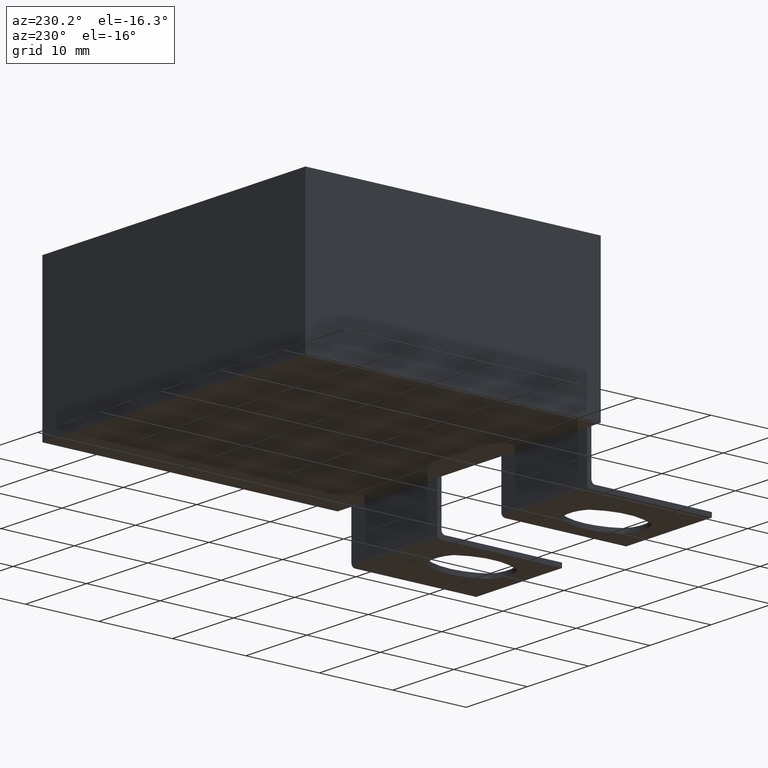
[diagram: clean part render]
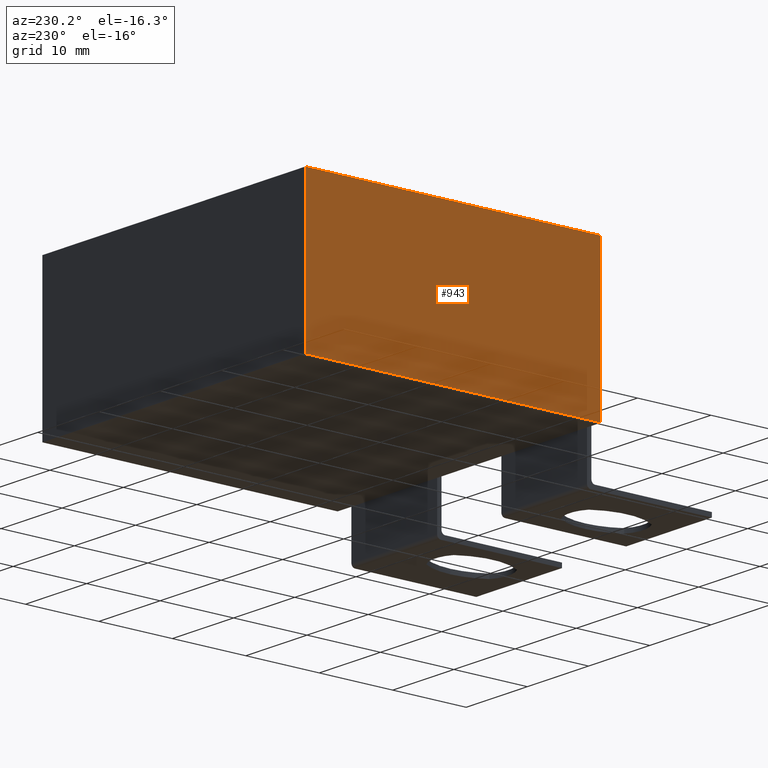
[diagram: same view with one face highlighted and labeled with its STEP entity id]
A machine part, auxiliary view. The second image highlights one B-rep face of the part: STEP entity #943.
In plain terms, the highlighted planar face has unit normal (1, 0, 0).
Its self-contained STEP definition (entity closure, byte-faithful):
#79 = EDGE_CURVE ( 'NONE', #3009, #1369, #2644, .T. ) ;
#125 = CARTESIAN_POINT ( 'NONE',  ( 0.0000000000000000000, 0.0000000000000000000, 20.39999999999999900 ) ) ;
#143 = VECTOR ( 'NONE', #2925, 1000.000000000000000 ) ;
#167 = DIRECTION ( 'NONE',  ( 1.000000000000000000, 0.0000000000000000000, 0.0000000000000000000 ) ) ;
#476 = CARTESIAN_POINT ( 'NONE',  ( 0.0000000000000000000, 40.20000000000000300, 0.0000000000000000000 ) ) ;
#488 = VECTOR ( 'NONE', #2582, 1000.000000000000000 ) ;
#489 = CARTESIAN_POINT ( 'NONE',  ( 0.0000000000000000000, 40.20000000000000300, 20.39999999999999900 ) ) ;
#727 = CARTESIAN_POINT ( 'NONE',  ( 0.0000000000000000000, 0.0000000000000000000, 20.39999999999999900 ) ) ;
#943 = ADVANCED_FACE ( 'NONE', ( #2208 ), #3132, .F. ) ;
#987 = LINE ( 'NONE', #2630, #143 ) ;
#996 = DIRECTION ( 'NONE',  ( -0.0000000000000000000, -0.0000000000000000000, -1.000000000000000000 ) ) ;
#1043 = EDGE_CURVE ( 'NONE', #1482, #1369, #987, .T. ) ;
#1087 = EDGE_CURVE ( 'NONE', #1558, #3009, #2928, .T. ) ;
#1241 = CARTESIAN_POINT ( 'NONE',  ( 0.0000000000000000000, 0.0000000000000000000, 20.39999999999999900 ) ) ;
#1296 = ORIENTED_EDGE ( 'NONE', *, *, #1043, .T. ) ;
#1369 = VERTEX_POINT ( 'NONE', #1737 ) ;
#1394 = ORIENTED_EDGE ( 'NONE', *, *, #1087, .F. ) ;
#1416 = VECTOR ( 'NONE', #996, 1000.000000000000000 ) ;
#1482 = VERTEX_POINT ( 'NONE', #476 ) ;
#1558 = VERTEX_POINT ( 'NONE', #489 ) ;
#1737 = CARTESIAN_POINT ( 'NONE',  ( 0.0000000000000000000, 0.0000000000000000000, 0.0000000000000000000 ) ) ;
#1786 = CARTESIAN_POINT ( 'NONE',  ( 0.0000000000000000000, 40.20000000000000300, 20.39999999999999900 ) ) ;
#1905 = ORIENTED_EDGE ( 'NONE', *, *, #2133, .T. ) ;
#1919 = EDGE_LOOP ( 'NONE', ( #1296, #2609, #1394, #1905 ) ) ;
#2025 = DIRECTION ( 'NONE',  ( 0.0000000000000000000, 0.0000000000000000000, -1.000000000000000000 ) ) ;
#2028 = CARTESIAN_POINT ( 'NONE',  ( 0.0000000000000000000, 0.0000000000000000000, 20.39999999999999900 ) ) ;
#2133 = EDGE_CURVE ( 'NONE', #1558, #1482, #2527, .T. ) ;
#2208 = FACE_OUTER_BOUND ( 'NONE', #1919, .T. ) ;
#2527 = LINE ( 'NONE', #1786, #1416 ) ;
#2582 = DIRECTION ( 'NONE',  ( -0.0000000000000000000, -0.0000000000000000000, -1.000000000000000000 ) ) ;
#2609 = ORIENTED_EDGE ( 'NONE', *, *, #79, .F. ) ;
#2630 = CARTESIAN_POINT ( 'NONE',  ( 0.0000000000000000000, 0.0000000000000000000, 0.0000000000000000000 ) ) ;
#2644 = LINE ( 'NONE', #2028, #488 ) ;
#2762 = AXIS2_PLACEMENT_3D ( 'NONE', #1241, #167, #2025 ) ;
#2925 = DIRECTION ( 'NONE',  ( -0.0000000000000000000, -1.000000000000000000, -0.0000000000000000000 ) ) ;
#2928 = LINE ( 'NONE', #727, #3435 ) ;
#3009 = VERTEX_POINT ( 'NONE', #125 ) ;
#3132 = PLANE ( 'NONE',  #2762 ) ;
#3174 = DIRECTION ( 'NONE',  ( -0.0000000000000000000, -1.000000000000000000, -0.0000000000000000000 ) ) ;
#3435 = VECTOR ( 'NONE', #3174, 1000.000000000000000 ) ;